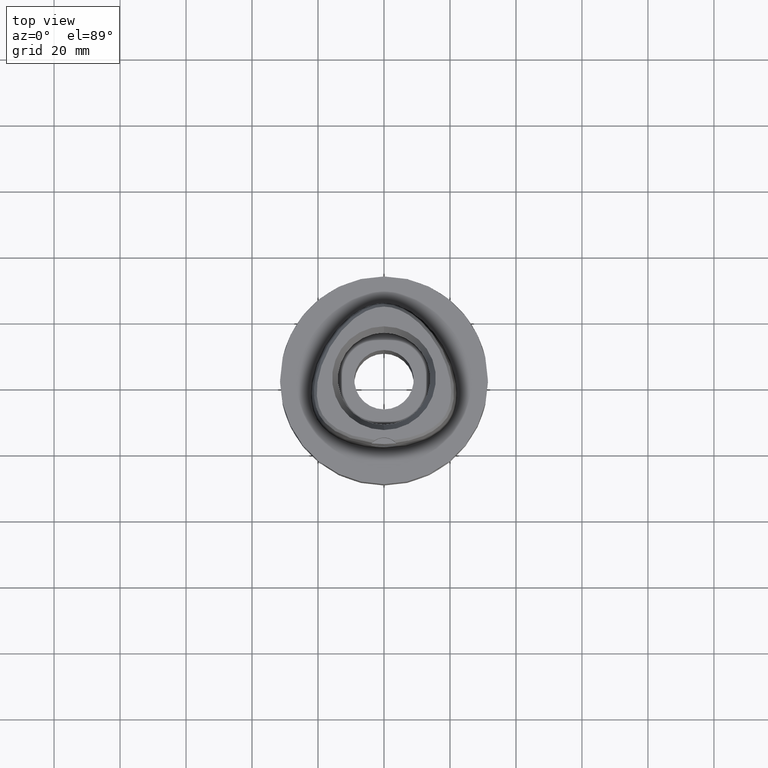
[diagram: clean part render]
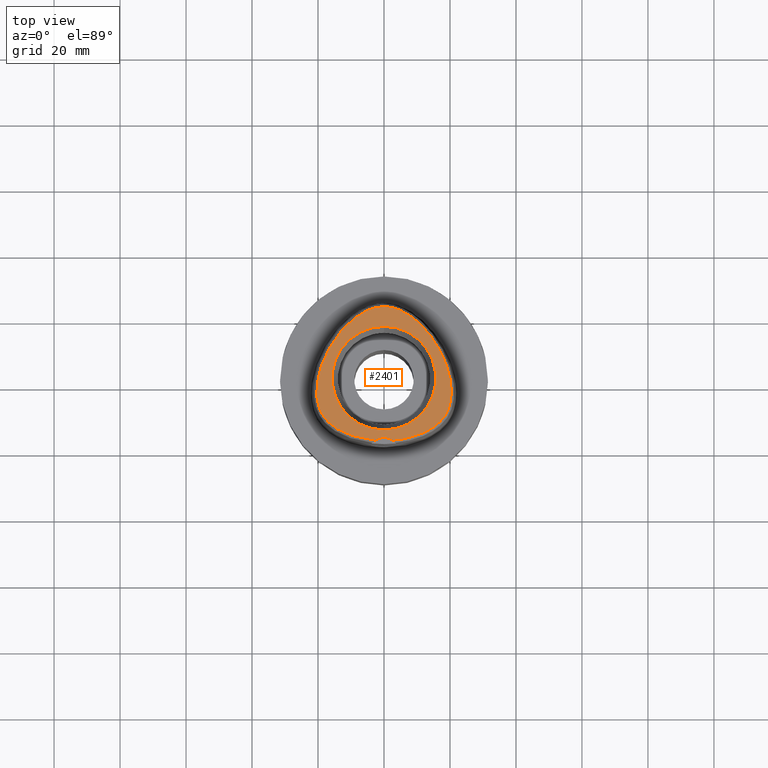
[diagram: same view with one face highlighted and labeled with its STEP entity id]
A machine part, top view. The second image highlights one B-rep face of the part: STEP entity #2401.
In plain terms, the highlighted planar face has unit normal (0, 0, 1).
Its self-contained STEP definition (entity closure, byte-faithful):
#15 = CARTESIAN_POINT ( 'NONE',  ( 10.17751632998410471, -17.24426134458636994, 37.99999999999345590 ) ) ;
#39 = CARTESIAN_POINT ( 'NONE',  ( 2.845098933833188681, -18.76733062685694620, 38.00000000000050449 ) ) ;
#64 = CARTESIAN_POINT ( 'NONE',  ( -19.64434054693376908, 1.520253387635712272, 37.99999999999302958 ) ) ;
#92 = CARTESIAN_POINT ( 'NONE',  ( -0.2181979014508964587, 21.68728795389294106, 37.99999999999477751 ) ) ;
#121 = VERTEX_POINT ( 'NONE', #3361 ) ;
#165 = AXIS2_PLACEMENT_3D ( 'NONE', #920, #4685, #510 ) ;
#191 = CARTESIAN_POINT ( 'NONE',  ( 11.46587147800407003, 15.92717600803366196, 37.99999999999845102 ) ) ;
#320 = DIRECTION ( 'NONE',  ( 0.0000000000000000000, 0.0000000000000000000, 1.000000000000000000 ) ) ;
#326 = CARTESIAN_POINT ( 'NONE',  ( 20.36412151361096434, -5.276385427453663013, 38.00000000000234479 ) ) ;
#334 = CARTESIAN_POINT ( 'NONE',  ( -16.09805956313822861, 9.908742513516113348, 38.00000000000118661 ) ) ;
#351 = CARTESIAN_POINT ( 'NONE',  ( 8.936919536467303971, -17.64796721715343963, 37.99999999999570122 ) ) ;
#359 = CARTESIAN_POINT ( 'NONE',  ( -16.88647904405168987, 8.517821442303130652, 38.00000000000154898 ) ) ;
#375 = CARTESIAN_POINT ( 'NONE',  ( 20.15982952132226558, -1.007721426051320535, 38.00000000000103739 ) ) ;
#380 = CARTESIAN_POINT ( 'NONE',  ( -15.71788912669490657, -14.29843101566123487, 37.99999999999188560 ) ) ;
#395 = DIRECTION ( 'NONE',  ( 0.0000000000000000000, 1.000000000000000000, 0.0000000000000000000 ) ) ;
#430 = DIRECTION ( 'NONE',  ( 0.0000000000000000000, -1.000000000000000000, 0.0000000000000000000 ) ) ;
#446 = EDGE_CURVE ( 'NONE', #121, #3876, #805, .T. ) ;
#481 = B_SPLINE_CURVE_WITH_KNOTS ( 'NONE', 3,
 ( #2577, #4924, #1493, #4556, #1820, #4124, #675, #3363, #3016, #1489, #1188, #2327, #3014, #380, #3383, #4257, #1973, #2619, #4554, #1548, #813, #3873, #756, #2700, #4148, #3089, #2675, #1114, #699, #4228, #3463, #4204, #1877, #64, #2249, #4921, #4630, #3793, #359, #334, #2648, #1514, #4181, #4588, #733, #1145, #779, #3849, #2277, #2302, #3817, #3134, #2435, #1622, #888, #3109, #4675, #3507, #92, #3156 ),
 .UNSPECIFIED., .F., .F.,
 ( 4, 1, 1, 1, 1, 1, 1, 1, 1, 1, 1, 1, 1, 1, 1, 1, 1, 1, 1, 1, 1, 1, 1, 1, 1, 1, 1, 1, 1, 1, 1, 1, 1, 1, 1, 1, 1, 1, 1, 1, 1, 1, 1, 1, 1, 1, 1, 1, 1, 1, 1, 1, 1, 1, 1, 1, 1, 4 ),
 ( 0.0000000000000000000, 0.005420919554200098744, 0.02318126027639999531, 0.04094160099879995407, 0.05870194172099996166, 0.07646228244330000035, 0.09422262316550000794, 0.1119829638877999356, 0.1297433046099999432, 0.1475036453321999508, 0.1652639860544999895, 0.1830243267768000281, 0.2007846674991000668, 0.2185450082212999634, 0.2363053489436000021, 0.2540656896658000097, 0.2718260303881000484, 0.2895863711103000560, 0.3073467118325999836, 0.3251070525547999912, 0.3428673932771000299, 0.3606277339994000686, 0.3783880747216000762, 0.3961484154438998928, 0.4139087561661000114, 0.4316690968884000501, 0.4494294376106000577, 0.4671897783328999854, 0.4849501190552000240, 0.5027104597774000316, 0.5204708004996999593, 0.5382311412219000779, 0.5559914819442000056, 0.5737518226664000132, 0.5915121633886999408, 0.6092725041108999484, 0.6270328448331999871, 0.6447931855555000258, 0.6625535262777000334, 0.6803138669999999610, 0.6980742077221999686, 0.7158345484445000073, 0.7335948891667000149, 0.7513552298890000536, 0.7691155706112000612, 0.7868759113336000199, 0.8046362520558000275, 0.8223965927780999552, 0.8401569335002999628, 0.8579172742224999704, 0.8756776149448000091, 0.8934379556670000166, 0.9111982963893099363, 0.9289586371115700070, 0.9467189778338299666, 0.9644793185560800453, 0.9822396592783400049, 1.000000000000000000 ),
 .UNSPECIFIED. ) ;
#510 = DIRECTION ( 'NONE',  ( 0.0000000000000000000, 1.000000000000000000, 0.0000000000000000000 ) ) ;
#599 = ORIENTED_EDGE ( 'NONE', *, *, #3791, .F. ) ;
#610 = CARTESIAN_POINT ( 'NONE',  ( 10.48999540691426624, 16.86597469870024213, 38.00000000000211742 ) ) ;
#659 = EDGE_CURVE ( 'NONE', #4115, #905, #481, .T. ) ;
#662 = FACE_BOUND ( 'NONE', #4084, .T. ) ;
#675 = CARTESIAN_POINT ( 'NONE',  ( -8.930096025510566804, -17.65000298921497901, 37.99999999999995737 ) ) ;
#692 = CARTESIAN_POINT ( 'NONE',  ( 18.31883910943218297, -11.58595831187972180, 37.99999999999403855 ) ) ;
#699 = CARTESIAN_POINT ( 'NONE',  ( -20.40060226223099704, -4.311417605381166140, 38.00000000000155609 ) ) ;
#726 = CARTESIAN_POINT ( 'NONE',  ( 18.67722910598234165, -11.03372143228246927, 38.00000000000105160 ) ) ;
#733 = CARTESIAN_POINT ( 'NONE',  ( -11.46564124494798342, 15.92741340513213011, 37.99999999999222666 ) ) ;
#749 = CARTESIAN_POINT ( 'NONE',  ( 16.09765529146514496, 9.909410920134446243, 37.99999999999359090 ) ) ;
#756 = CARTESIAN_POINT ( 'NONE',  ( -19.54919922642116603, -9.228169790568331976, 38.00000000000238032 ) ) ;
#763 = ORIENTED_EDGE ( 'NONE', *, *, #659, .F. ) ;
#772 = CARTESIAN_POINT ( 'NONE',  ( 18.99619228226657697, -10.46780014453679541, 37.99999999999467093 ) ) ;
#779 = CARTESIAN_POINT ( 'NONE',  ( -9.524337278002159124, 17.70558492631277403, 37.99999999999684519 ) ) ;
#805 = CIRCLE ( 'NONE', #3928, 15.71487483155999776 ) ;
#813 = CARTESIAN_POINT ( 'NONE',  ( -18.99520880203990103, -10.46968343926150347, 38.00000000000085265 ) ) ;
#888 = CARTESIAN_POINT ( 'NONE',  ( -2.735698246183528415, 21.34559102902683136, 37.99999999999899813 ) ) ;
#905 = VERTEX_POINT ( 'NONE', #4756 ) ;
#920 = CARTESIAN_POINT ( 'NONE',  ( 0.0000000000000000000, -23.00000000000000000, 38.00000000000000000 ) ) ;
#951 = ORIENTED_EDGE ( 'NONE', *, *, #2205, .F. ) ;
#960 = CIRCLE ( 'NONE', #165, 5.000000000000000888 ) ;
#1010 = CARTESIAN_POINT ( 'NONE',  ( 9.524842839488464108, 17.70516372194599697, 38.00000000000090949 ) ) ;
#1061 = CARTESIAN_POINT ( 'NONE',  ( 19.54993126781956647, -9.226212439885951966, 37.99999999999500488 ) ) ;
#1086 = CARTESIAN_POINT ( 'NONE',  ( 14.34383722811827155, 12.54786717290350673, 37.99999999999329958 ) ) ;
#1114 = CARTESIAN_POINT ( 'NONE',  ( -20.36398648679844925, -5.278470727085459835, 37.99999999999725020 ) ) ;
#1145 = CARTESIAN_POINT ( 'NONE',  ( -10.48962422759899482, 16.86631853279131832, 38.00000000000608935 ) ) ;
#1161 = CARTESIAN_POINT ( 'NONE',  ( 15.24661770199221955, 11.25762885478027364, 37.99999999999830180 ) ) ;
#1188 = CARTESIAN_POINT ( 'NONE',  ( -13.33457781970062683, -15.85148397417343524, 38.00000000000312639 ) ) ;
#1466 = ORIENTED_EDGE ( 'NONE', *, *, #1970, .F. ) ;
#1482 = CARTESIAN_POINT ( 'NONE',  ( 19.78323211892917044, -8.541156231035969881, 37.99999999999530331 ) ) ;
#1489 = CARTESIAN_POINT ( 'NONE',  ( -12.37132652997746618, -16.34104299087959333, 37.99999999999624833 ) ) ;
#1493 = CARTESIAN_POINT ( 'NONE',  ( -3.522896839654350742, -18.70811514173509238, 38.00000000000049027 ) ) ;
#1506 = CARTESIAN_POINT ( 'NONE',  ( 3.529311563348183522, -18.70747079909805066, 37.99999999999368328 ) ) ;
#1514 = CARTESIAN_POINT ( 'NONE',  ( -14.34402387965993420, 12.54761970512696756, 37.99999999999403855 ) ) ;
#1530 = AXIS2_PLACEMENT_3D ( 'NONE', #1859, #3723, #4541 ) ;
#1548 = CARTESIAN_POINT ( 'NONE',  ( -18.67608643721710848, -11.03561202290874732, 37.99999999999778311 ) ) ;
#1622 = CARTESIAN_POINT ( 'NONE',  ( -3.481017203589356512, 21.13509756881815349, 37.99999999999770495 ) ) ;
#1720 = CARTESIAN_POINT ( 'NONE',  ( 5.059249257020761448, 20.53399274678920250, 37.99999999999884892 ) ) ;
#1739 = CARTESIAN_POINT ( 'NONE',  ( 2.736932690726542550, 21.34527940057019890, 37.99999999999795364 ) ) ;
#1790 = CARTESIAN_POINT ( 'NONE',  ( 2.018320379028074818, 21.50256508436320502, 37.99999999999283062 ) ) ;
#1820 = CARTESIAN_POINT ( 'NONE',  ( -6.188376196366572657, -18.31830638231460640, 37.99999999999664624 ) ) ;
#1838 = CARTESIAN_POINT ( 'NONE',  ( 19.28677546796919984, -9.867757137505748233, 37.99999999999482725 ) ) ;
#1859 = CARTESIAN_POINT ( 'NONE',  ( 0.0000000000000000000, 0.0000000000000000000, 38.00000000000000000 ) ) ;
#1867 = CARTESIAN_POINT ( 'NONE',  ( 20.38292172608094788, -3.276278498261253169, 37.99999999999327827 ) ) ;
#1877 = CARTESIAN_POINT ( 'NONE',  ( -19.94188961899288870, 0.2242544969878662031, 38.00000000000540723 ) ) ;
#1880 = CARTESIAN_POINT ( 'NONE',  ( -2.682279906006999948, -18.78035848609999903, 38.00000000000000000 ) ) ;
#1890 = CARTESIAN_POINT ( 'NONE',  ( 20.40062138794698399, -4.309334958867470533, 38.00000000000172662 ) ) ;
#1912 = CARTESIAN_POINT ( 'NONE',  ( 16.93855157778028797, -13.22377441789225827, 37.99999999998994582 ) ) ;
#1970 = EDGE_CURVE ( 'NONE', #3876, #121, #2818, .T. ) ;
#1973 = CARTESIAN_POINT ( 'NONE',  ( -17.45119705494348139, -12.68365517585534441, 37.99999999999939604 ) ) ;
#2016 = ORIENTED_EDGE ( 'NONE', *, *, #446, .F. ) ;
#2069 = CARTESIAN_POINT ( 'NONE',  ( 0.0000000000000000000, 0.0000000000000000000, 38.00000000000000000 ) ) ;
#2123 = CARTESIAN_POINT ( 'NONE',  ( 1.325020189552865268, 21.61081414409266088, 37.99999999999866418 ) ) ;
#2168 = CARTESIAN_POINT ( 'NONE',  ( 12.44125753246823329, 14.89118158853661456, 37.99999999999604938 ) ) ;
#2202 = B_SPLINE_CURVE_WITH_KNOTS ( 'NONE', 3,
 ( #3326, #4865, #4063, #2123, #1790, #1739, #3278, #3633, #1720, #4821, #3230, #3613, #2914, #1010, #610, #191, #2168, #3759, #1086, #1161, #749, #3785, #2693, #3376, #4196, #3034, #4220, #4142, #375, #2612, #1867, #1890, #326, #2295, #4578, #4915, #1482, #1061, #1838, #772, #726, #692, #3008, #3423, #1912, #4499, #4893, #4937, #2268, #4548, #2320, #2639, #15, #351, #2592, #2240, #4524, #1506, #39, #3837 ),
 .UNSPECIFIED., .F., .F.,
 ( 4, 1, 1, 1, 1, 1, 1, 1, 1, 1, 1, 1, 1, 1, 1, 1, 1, 1, 1, 1, 1, 1, 1, 1, 1, 1, 1, 1, 1, 1, 1, 1, 1, 1, 1, 1, 1, 1, 1, 1, 1, 1, 1, 1, 1, 1, 1, 1, 1, 1, 1, 1, 1, 1, 1, 1, 1, 4 ),
 ( 0.0000000000000000000, 0.01775854187129999318, 0.03551708374169992855, 0.05327562561200005486, 0.07103416748239999023, 0.08879270935270000553, 0.1065512512231000519, 0.1243097930933999562, 0.1420683349638000026, 0.1598268768341000179, 0.1775854187044000332, 0.1953439605747999686, 0.2131025024450999839, 0.2308610443155000302, 0.2486195861857999345, 0.2663781280563000120, 0.2841366699266000273, 0.3018952117970000737, 0.3196537536672999780, 0.3374122955377000244, 0.3551708374080000397, 0.3729293792782999439, 0.3906879211486999903, 0.4084464630190000056, 0.4262050048894000520, 0.4439635467596999563, 0.4617220886301000027, 0.4794806305004000180, 0.4972391723707999533, 0.5149977142410999686, 0.5327562561113999839, 0.5505147979818000303, 0.5682733398521000456, 0.5860318817224999810, 0.6037904235927999963, 0.6215489654632000427, 0.6393075073334999470, 0.6570660492038999934, 0.6748245910742000087, 0.6925831329445000240, 0.7103416748149000703, 0.7281002166851999746, 0.7458587585556000210, 0.7636173004259000363, 0.7813758422962999717, 0.7991343841665999870, 0.8168929260370000334, 0.8346514679073000487, 0.8524100097776999840, 0.8701685516479999993, 0.8879270935183000146, 0.9056856353886799660, 0.9234441772589799813, 0.9412027191293600437, 0.9589612609997000270, 0.9767198028700500023, 0.9944783447403919840, 1.000000000000000000 ),
 .UNSPECIFIED. ) ;
#2205 = EDGE_CURVE ( 'NONE', #905, #2575, #2202, .T. ) ;
#2235 = CARTESIAN_POINT ( 'NONE',  ( 0.0000000000000000000, 0.0000000000000000000, 38.00000000000000000 ) ) ;
#2240 = CARTESIAN_POINT ( 'NONE',  ( 6.196495988003836608, -18.31673538864715667, 38.00000000000270006 ) ) ;
#2249 = CARTESIAN_POINT ( 'NONE',  ( -19.26324493739043575, 2.868570891456712957, 37.99999999999801759 ) ) ;
#2268 = CARTESIAN_POINT ( 'NONE',  ( 14.21382211799246420, -15.34284287400327607, 37.99999999999749178 ) ) ;
#2277 = CARTESIAN_POINT ( 'NONE',  ( -7.655222869372612315, 19.09452359226409257, 37.99999999999241140 ) ) ;
#2295 = CARTESIAN_POINT ( 'NONE',  ( 20.27923816685704850, -6.179850483268573669, 38.00000000000424905 ) ) ;
#2302 = CARTESIAN_POINT ( 'NONE',  ( -6.759433772717883926, 19.65454812512781757, 37.99999999998978240 ) ) ;
#2320 = CARTESIAN_POINT ( 'NONE',  ( 12.37622418509501365, -16.33871033286395758, 37.99999999999246825 ) ) ;
#2327 = CARTESIAN_POINT ( 'NONE',  ( -14.21001600787628227, -15.34519100086182775, 37.99999999999798916 ) ) ;
#2401 = ADVANCED_FACE ( 'NONE', ( #3057, #662 ), #4908, .T. ) ;
#2435 = CARTESIAN_POINT ( 'NONE',  ( -4.254559144978211194, 20.86660163697474246, 37.99999999999459277 ) ) ;
#2570 = AXIS2_PLACEMENT_3D ( 'NONE', #2069, #3212, #430 ) ;
#2575 = VERTEX_POINT ( 'NONE', #3526 ) ;
#2577 = CARTESIAN_POINT ( 'NONE',  ( -2.682279906006999948, -18.78035848609999903, 38.00000000000000000 ) ) ;
#2592 = CARTESIAN_POINT ( 'NONE',  ( 7.606839420237800908, -18.00827588386569289, 37.99999999999335643 ) ) ;
#2612 = CARTESIAN_POINT ( 'NONE',  ( 20.30478359881625039, -2.175347700950585050, 37.99999999999741362 ) ) ;
#2619 = CARTESIAN_POINT ( 'NONE',  ( -17.91005512243413023, -12.13778127739366575, 37.99999999999626255 ) ) ;
#2639 = CARTESIAN_POINT ( 'NONE',  ( 11.32341394163060677, -16.80569392800243733, 37.99999999998989608 ) ) ;
#2648 = CARTESIAN_POINT ( 'NONE',  ( -15.24692477332145657, 11.25717358966212878, 38.00000000000398614 ) ) ;
#2675 = CARTESIAN_POINT ( 'NONE',  ( -20.27898581532103961, -6.181921586190280316, 37.99999999999426592 ) ) ;
#2693 = CARTESIAN_POINT ( 'NONE',  ( 17.60373714028164116, 7.099883643193134475, 37.99999999999960920 ) ) ;
#2700 = CARTESIAN_POINT ( 'NONE',  ( -19.78262210840610535, -8.543146992552996366, 37.99999999999650413 ) ) ;
#2818 = CIRCLE ( 'NONE', #2570, 15.71487483155999776 ) ;
#2914 = CARTESIAN_POINT ( 'NONE',  ( 8.578848111817190869, 18.44609846599482950, 37.99999999999270983 ) ) ;
#3008 = CARTESIAN_POINT ( 'NONE',  ( 17.91165267838689346, -12.13575389397753135, 37.99999999999983658 ) ) ;
#3014 = CARTESIAN_POINT ( 'NONE',  ( -15.00295592773893993, -14.82617991125949253, 38.00000000000207478 ) ) ;
#3016 = CARTESIAN_POINT ( 'NONE',  ( -11.31790883120923574, -16.80796958613901637, 37.99999999999366196 ) ) ;
#3034 = CARTESIAN_POINT ( 'NONE',  ( 19.26272899268713346, 2.870227893749706105, 37.99999999999601386 ) ) ;
#3057 = FACE_OUTER_BOUND ( 'NONE', #3808, .T. ) ;
#3089 = CARTESIAN_POINT ( 'NONE',  ( -20.15090095364455891, -7.024227649787367689, 38.00000000000337508 ) ) ;
#3109 = CARTESIAN_POINT ( 'NONE',  ( -2.017025177696627924, 21.50280829367941493, 37.99999999999284483 ) ) ;
#3134 = CARTESIAN_POINT ( 'NONE',  ( -5.058220461389709932, 20.53445508814898801, 37.99999999999482014 ) ) ;
#3156 = CARTESIAN_POINT ( 'NONE',  ( -3.470663397158000417E-11, 21.68728795390000030, 38.00000000000000000 ) ) ;
#3212 = DIRECTION ( 'NONE',  ( 0.0000000000000000000, 0.0000000000000000000, 1.000000000000000000 ) ) ;
#3230 = CARTESIAN_POINT ( 'NONE',  ( 6.760281394351680184, 19.65404668910042574, 37.99999999999601386 ) ) ;
#3278 = CARTESIAN_POINT ( 'NONE',  ( 3.482188079160562388, 21.13472718027258423, 37.99999999999889866 ) ) ;
#3326 = CARTESIAN_POINT ( 'NONE',  ( -3.470663397158000417E-11, 21.68728795390000030, 38.00000000000000000 ) ) ;
#3361 = CARTESIAN_POINT ( 'NONE',  ( 0.0000000000000000000, 15.71487483155999776, 38.00000000000000000 ) ) ;
#3363 = CARTESIAN_POINT ( 'NONE',  ( -10.17136073855722422, -17.24644253470416189, 37.99999999999629097 ) ) ;
#3376 = CARTESIAN_POINT ( 'NONE',  ( 18.24247239569753276, 5.672548708072281620, 37.99999999999387512 ) ) ;
#3383 = CARTESIAN_POINT ( 'NONE',  ( -16.36032397154084705, -13.76458520345104297, 37.99999999999916156 ) ) ;
#3423 = CARTESIAN_POINT ( 'NONE',  ( 17.45306278053751825, -12.68156296993720389, 37.99999999999915445 ) ) ;
#3463 = CARTESIAN_POINT ( 'NONE',  ( -20.30498420086992795, -2.177378896257732066, 38.00000000000451905 ) ) ;
#3507 = CARTESIAN_POINT ( 'NONE',  ( -0.6498990081535607199, 21.67378274707991892, 37.99999999999679545 ) ) ;
#3526 = CARTESIAN_POINT ( 'NONE',  ( 2.682287482605000051, -18.78036330228999873, 38.00000000000000000 ) ) ;
#3613 = CARTESIAN_POINT ( 'NONE',  ( 7.655962789344058272, 19.09402979100027764, 38.00000000000228795 ) ) ;
#3633 = CARTESIAN_POINT ( 'NONE',  ( 4.255661039972460813, 20.86618068830172135, 37.99999999999394618 ) ) ;
#3723 = DIRECTION ( 'NONE',  ( 0.0000000000000000000, 0.0000000000000000000, 1.000000000000000000 ) ) ;
#3759 = CARTESIAN_POINT ( 'NONE',  ( 13.40430406168518829, 13.76274261013118050, 38.00000000000051870 ) ) ;
#3785 = CARTESIAN_POINT ( 'NONE',  ( 16.88599964843483292, 8.518708218770555618, 37.99999999999927525 ) ) ;
#3791 = EDGE_CURVE ( 'NONE', #2575, #4115, #960, .T. ) ;
#3793 = CARTESIAN_POINT ( 'NONE',  ( -17.60426951086878233, 7.098774535281697773, 37.99999999999242561 ) ) ;
#3808 = EDGE_LOOP ( 'NONE', ( #951, #763, #599 ) ) ;
#3817 = CARTESIAN_POINT ( 'NONE',  ( -5.893543501601588908, 20.13235399351815502, 38.00000000000195399 ) ) ;
#3837 = CARTESIAN_POINT ( 'NONE',  ( 2.682287482605000051, -18.78036330228999873, 38.00000000000000000 ) ) ;
#3849 = CARTESIAN_POINT ( 'NONE',  ( -8.578220530114318620, 18.44656747109298678, 37.99999999999890576 ) ) ;
#3873 = CARTESIAN_POINT ( 'NONE',  ( -19.28591707037135805, -9.869682450887335534, 37.99999999999764810 ) ) ;
#3876 = VERTEX_POINT ( 'NONE', #4433 ) ;
#3928 = AXIS2_PLACEMENT_3D ( 'NONE', #2235, #320, #395 ) ;
#4063 = CARTESIAN_POINT ( 'NONE',  ( 0.6513209347956040451, 21.67370899611294988, 38.00000000000177636 ) ) ;
#4084 = EDGE_LOOP ( 'NONE', ( #1466, #2016 ) ) ;
#4115 = VERTEX_POINT ( 'NONE', #1880 ) ;
#4124 = CARTESIAN_POINT ( 'NONE',  ( -7.599370508970582527, -18.01010694911509802, 38.00000000000306954 ) ) ;
#4142 = CARTESIAN_POINT ( 'NONE',  ( 19.94150023627677015, 0.2261566111945834956, 37.99999999999885603 ) ) ;
#4148 = CARTESIAN_POINT ( 'NONE',  ( -19.98419490691690470, -7.809898894995943586, 37.99999999999984368 ) ) ;
#4181 = CARTESIAN_POINT ( 'NONE',  ( -13.40435640711444876, 13.76268382997571749, 37.99999999999624833 ) ) ;
#4196 = CARTESIAN_POINT ( 'NONE',  ( 18.79595068776193756, 4.257753965101906957, 38.00000000000139266 ) ) ;
#4204 = CARTESIAN_POINT ( 'NONE',  ( -20.16012968311621734, -1.009698174524491954, 37.99999999999817391 ) ) ;
#4220 = CARTESIAN_POINT ( 'NONE',  ( 19.64387775268392744, 1.522048414457697563, 37.99999999999695177 ) ) ;
#4228 = CARTESIAN_POINT ( 'NONE',  ( -20.38301517463077062, -3.278344853327991526, 37.99999999999930367 ) ) ;
#4257 = CARTESIAN_POINT ( 'NONE',  ( -16.93638123745382629, -13.22593246128443134, 37.99999999999475619 ) ) ;
#4433 = CARTESIAN_POINT ( 'NONE',  ( 0.0000000000000000000, -15.71487483155999776, 38.00000000000000000 ) ) ;
#4499 = CARTESIAN_POINT ( 'NONE',  ( 16.36283630828523172, -13.76236604535158214, 38.00000000000032685 ) ) ;
#4524 = CARTESIAN_POINT ( 'NONE',  ( 4.715576077242072728, -18.56597918135746994, 37.99999999999329958 ) ) ;
#4541 = DIRECTION ( 'NONE',  ( 1.000000000000000000, 0.0000000000000000000, 0.0000000000000000000 ) ) ;
#4548 = CARTESIAN_POINT ( 'NONE',  ( 13.33890749495679806, -15.84912955619575570, 37.99999999999478462 ) ) ;
#4554 = CARTESIAN_POINT ( 'NONE',  ( -18.31748213707152217, -11.58791794387477481, 37.99999999999723599 ) ) ;
#4556 = CARTESIAN_POINT ( 'NONE',  ( -4.706994425064589649, -18.56721852572706055, 38.00000000000039790 ) ) ;
#4578 = CARTESIAN_POINT ( 'NONE',  ( 20.15127154947359145, -7.022178451341475558, 37.99999999999855049 ) ) ;
#4588 = CARTESIAN_POINT ( 'NONE',  ( -12.44116897271491062, 14.89128547409355008, 38.00000000000297717 ) ) ;
#4630 = CARTESIAN_POINT ( 'NONE',  ( -18.24302769442297745, 5.671232572959046259, 37.99999999999560174 ) ) ;
#4675 = CARTESIAN_POINT ( 'NONE',  ( -1.323674540694582458, 21.61098849315915871, 38.00000000000111555 ) ) ;
#4685 = DIRECTION ( 'NONE',  ( 0.0000000000000000000, 0.0000000000000000000, 1.000000000000000000 ) ) ;
#4756 = CARTESIAN_POINT ( 'NONE',  ( -3.470663397158000417E-11, 21.68728795390000030, 38.00000000000000000 ) ) ;
#4821 = CARTESIAN_POINT ( 'NONE',  ( 5.894487344450583421, 20.13186406532091866, 37.99999999999661782 ) ) ;
#4865 = CARTESIAN_POINT ( 'NONE',  ( 0.2185816947241708552, 21.68728795389544217, 37.99999999999877787 ) ) ;
#4893 = CARTESIAN_POINT ( 'NONE',  ( 15.72078707640527107, -14.29615620309481372, 37.99999999999455724 ) ) ;
#4908 = PLANE ( 'NONE',  #1530 ) ;
#4915 = CARTESIAN_POINT ( 'NONE',  ( 19.98468477323277881, -7.807876343103352212, 37.99999999999586464 ) ) ;
#4921 = CARTESIAN_POINT ( 'NONE',  ( -18.79649882725154697, 4.256255933891955223, 37.99999999999622702 ) ) ;
#4924 = CARTESIAN_POINT ( 'NONE',  ( -2.841965291530657023, -18.76757795572010679, 38.00000000000068923 ) ) ;
#4937 = CARTESIAN_POINT ( 'NONE',  ( 15.00628712263844911, -14.82385870794820448, 37.99999999999327827 ) ) ;